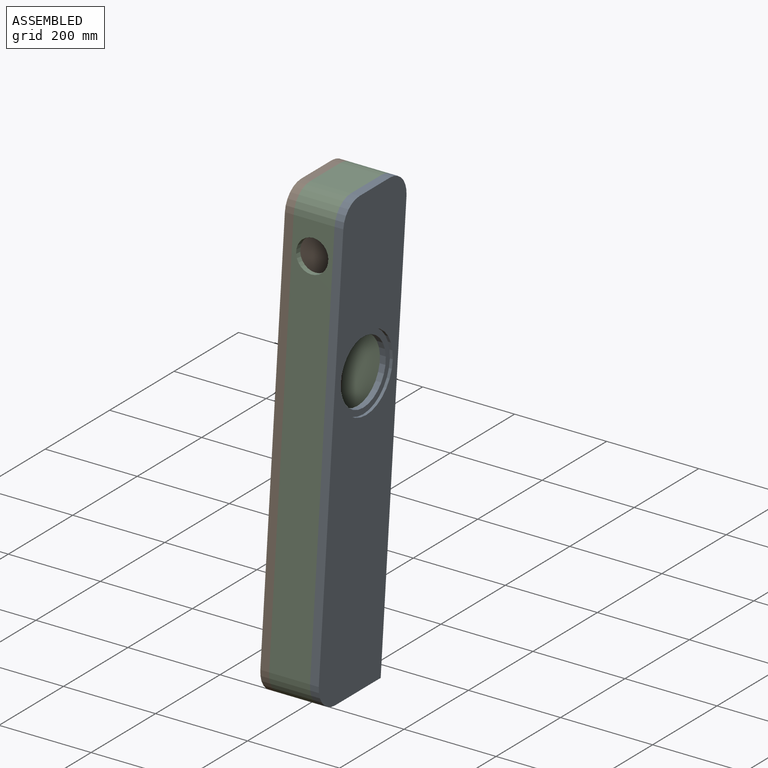
[diagram: assembled view]
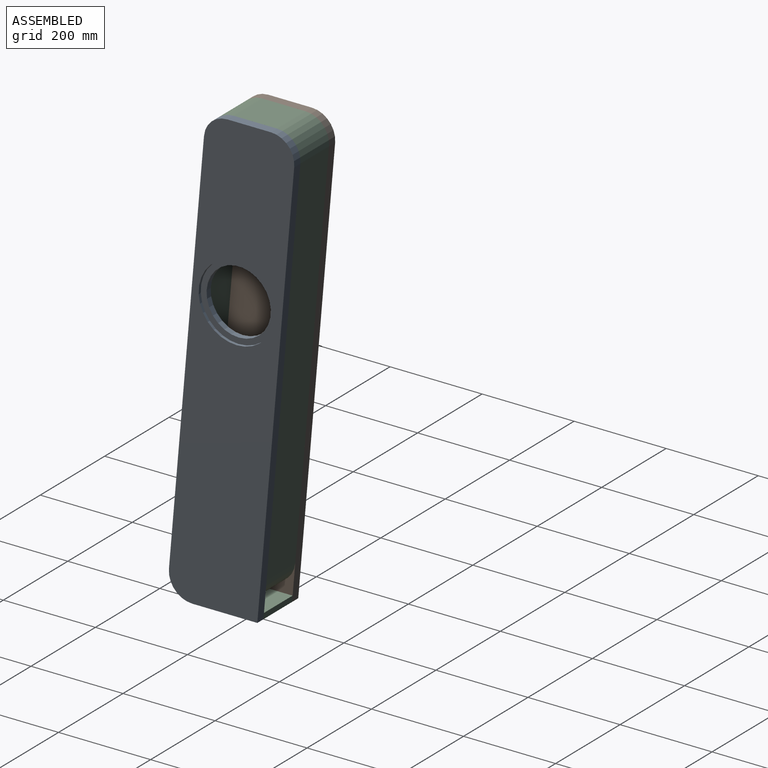
[diagram: assembled view, second angle]
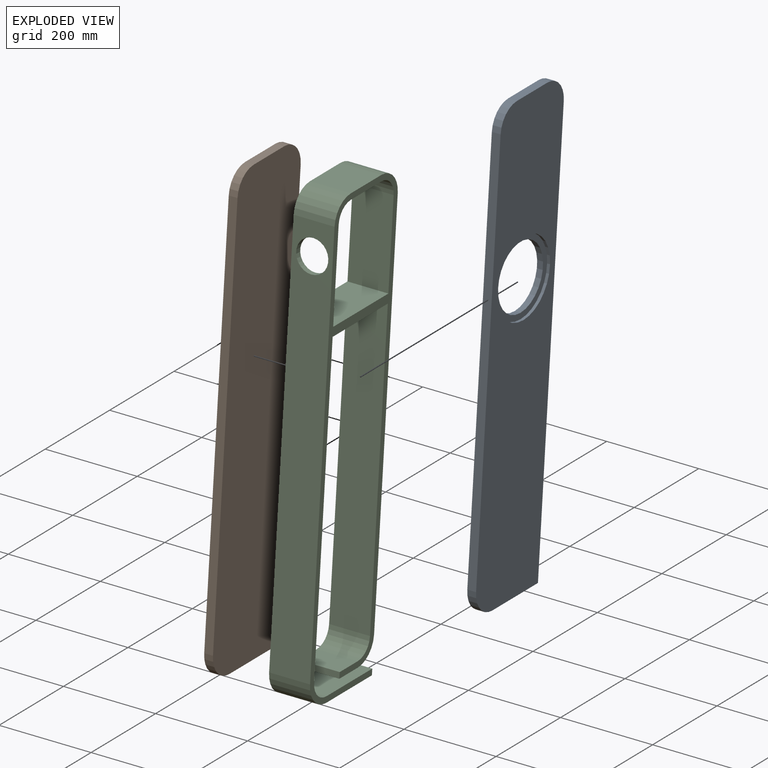
[diagram: exploded view]
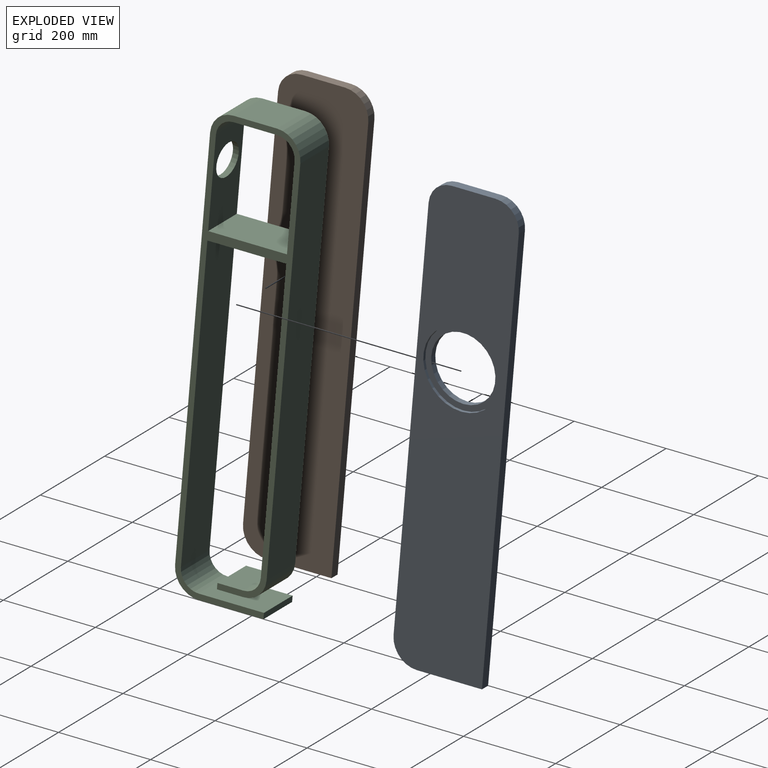
[diagram: exploded view, second angle]
ASSEMBLY  parts=3 mates=6
PART A: 12 faces, bbox 19.1x272.6x971.6 mm
  f0: plane 94.86x19.05mm, normal (0,0,1), area 1807.1mm2, adj f1,f6,f7,f8
  f1: cylinder r=50.8mm len=50.61mm, axis (-1,0,0), area 1435.7mm2, adj f0,f2,f7,f8
  f2: plane 869.95x76.11mm, normal (0,-1,0.09), area 16635.9mm2, adj f1,f3,f7,f8
  f3: cylinder r=50.8mm len=55.23mm, axis (-1,0,0), area 1604.6mm2, adj f2,f4,f7,f8
  f4: plane 141.41x19.05mm, normal (0,0,-1), area 2693.9mm2, adj f3,f5,f7,f8
  f5: plane 916.32x80.17mm, normal (0,1,-0.09), area 17522.6mm2, adj f4,f6,f7,f8
  f6: cylinder r=50.8mm len=55.23mm, axis (-1,0,0), area 1604.6mm2, adj f0,f5,f7,f8
  f7: plane 971.55x272.57mm, normal (1,0,0), area 168037mm2, adj f0,f1,f2,f3,f4,f5,f6,f11
  f8: plane 971.55x272.57mm, normal (-1,0,0), area 174117.5mm2, adj f0,f1,f2,f3,f4,f5,f6,f9
  f9: cylinder r=69.85mm len=139.7mm, axis (1,0,0), area 5573.8mm2, adj f8,f10
  f10: plane 165.1x165.1mm, normal (1,0,0), area 6080.5mm2, adj f9,f11
  f11: cylinder r=82.55mm len=165.1mm, axis (1,0,0), area 3293.6mm2, adj f7,f10
PART B: 9 faces, bbox 19.1x272.6x971.6 mm
  f0: plane 94.86x19.05mm, normal (0,0,1), area 1807.1mm2, adj f1,f6,f7,f8
  f1: cylinder r=50.8mm len=50.61mm, axis (-1,0,0), area 1435.7mm2, adj f0,f2,f7,f8
  f2: plane 869.95x76.11mm, normal (0,-1,0.09), area 16635.9mm2, adj f1,f3,f7,f8
  f3: cylinder r=50.8mm len=55.23mm, axis (-1,0,0), area 1604.6mm2, adj f2,f4,f7,f8
  f4: plane 141.41x19.05mm, normal (0,0,-1), area 2693.9mm2, adj f3,f5,f7,f8
  f5: plane 916.32x80.17mm, normal (0,1,-0.09), area 17522.6mm2, adj f4,f6,f7,f8
  f6: cylinder r=50.8mm len=55.23mm, axis (-1,0,0), area 1604.6mm2, adj f0,f5,f7,f8
  f7: plane 971.55x272.57mm, normal (1,0,0), area 189445.4mm2, adj f0,f1,f2,f3,f4,f5,f6
  f8: plane 971.55x272.57mm, normal (-1,0,0), area 189445.4mm2, adj f0,f1,f2,f3,f4,f5,f6
PART C: 27 faces, bbox 88.9x272.6x971.6 mm
  f0: cylinder r=38.1mm len=88.9mm, axis (-1,0,0), area 5024.8mm2, adj f1,f23,f24,f25
  f1: plane 94.86x88.9mm, normal (0,0,-1), area 8433.2mm2, adj f0,f2,f24,f25
  f2: cylinder r=38.1mm len=88.9mm, axis (-1,0,0), area 5616mm2, adj f1,f3,f24,f25
  f3: plane 187.18x88.9mm, normal (0,-1,0.09), area 16703.8mm2, adj f2,f4,f24,f25
  f4: plane 171.35x88.9mm, normal (0,0,1), area 15233.3mm2, adj f3,f23,f24,f25
  f5: plane 171.35x88.9mm, normal (0,0,-1), area 15233.3mm2, adj f6,f22,f24,f25
  f6: plane 631.97x88.9mm, normal (0,-1,0.09), area 56396.8mm2, adj f5,f7,f24,f25
  f7: cylinder r=38.1mm len=88.9mm, axis (-1,0,0), area 5024.8mm2, adj f6,f8,f24,f25
  f8: plane 88.9x56.26mm, normal (0,0,1), area 5001.3mm2, adj f7,f9,f24,f25
  f9: plane 88.9x12.7mm, normal (0,-1,0.09), area 1133.3mm2, adj f8,f10,f24,f25
  f10: plane 88.9x57.37mm, normal (0,0,-1), area 5100mm2, adj f9,f11,f24,f25
  f11: cylinder r=50.8mm len=88.9mm, axis (-1,0,0), area 6699.8mm2, adj f10,f12,f24,f25
  f12: plane 838.2x88.9mm, normal (0,1,-0.09), area 74800.6mm2, adj f11,f13,f24,f25
  f13: cylinder r=50.8mm len=88.9mm, axis (-1,0,0), area 7488mm2, adj f12,f14,f24,f25
  f14: plane 94.86x88.9mm, normal (0,0,1), area 8433.2mm2, adj f13,f15,f24,f25
  f15: cylinder r=50.8mm len=88.9mm, axis (-1,0,0), area 6699.8mm2, adj f14,f16,f24,f25
  f16: plane 869.95x88.9mm, normal (0,-1,0.09), area 73802mm2, adj f15,f17,f24,f25,f26
  f17: cylinder r=50.8mm len=88.9mm, axis (-1,0,0), area 7488mm2, adj f16,f18,f24,f25
  f18: plane 141.41x88.9mm, normal (0,0,-1), area 12571.5mm2, adj f17,f19,f24,f25
  f19: plane 88.9x12.7mm, normal (0,1,-0.09), area 1133.3mm2, adj f18,f20,f24,f25
  f20: plane 142.52x88.9mm, normal (0,0,1), area 12670.3mm2, adj f19,f21,f24,f25
  f21: cylinder r=38.1mm len=88.9mm, axis (-1,0,0), area 5616mm2, adj f20,f22,f24,f25
  f22: plane 657.08x88.9mm, normal (0,1,-0.09), area 58637.5mm2, adj f5,f21,f24,f25
  f23: plane 193.82x88.9mm, normal (0,1,-0.09), area 13464.5mm2, adj f0,f4,f24,f25,f26
  f24: plane 971.55x272.57mm, normal (1,0,0), area 32316.8mm2, adj f0,f1,f2,f3,f4,f5,f6,f7
  f25: plane 971.55x272.57mm, normal (-1,0,0), area 32316.8mm2, adj f0,f1,f2,f3,f4,f5,f6,f7
  f26: cylinder r=34.92mm len=70.69mm, axis (0,-1,0.09), area 2786.9mm2, adj f16,f23
PLACE A t=(275.52,321.8,-22.42)mm
PLACE B t=(167.57,321.8,-22.42)mm
PLACE C t=(186.62,321.8,-22.42)mm
MATE planar B.f7 <-> C.f25  axis (1,0,0) through (186.62,422.29,462.23)mm
MATE planar C.f26 <-> A.f2  axis (0,-1,0.09) through (231.07,356.3,835.27)mm
MATE planar C.f24 <-> A.f6  axis (1,0,0) through (275.52,423.89,474.34)mm
MATE planar A.f0 <-> C.f14  axis (0,0,1) through (285.05,460.24,949.13)mm
MATE planar C.f18 <-> B.f4  axis (0,0,-1) through (186.62,407.4,-22.42)mm
MATE planar B.f2 <-> C.f16  axis (0,-1,0.09) through (177.1,324.14,467.78)mm
